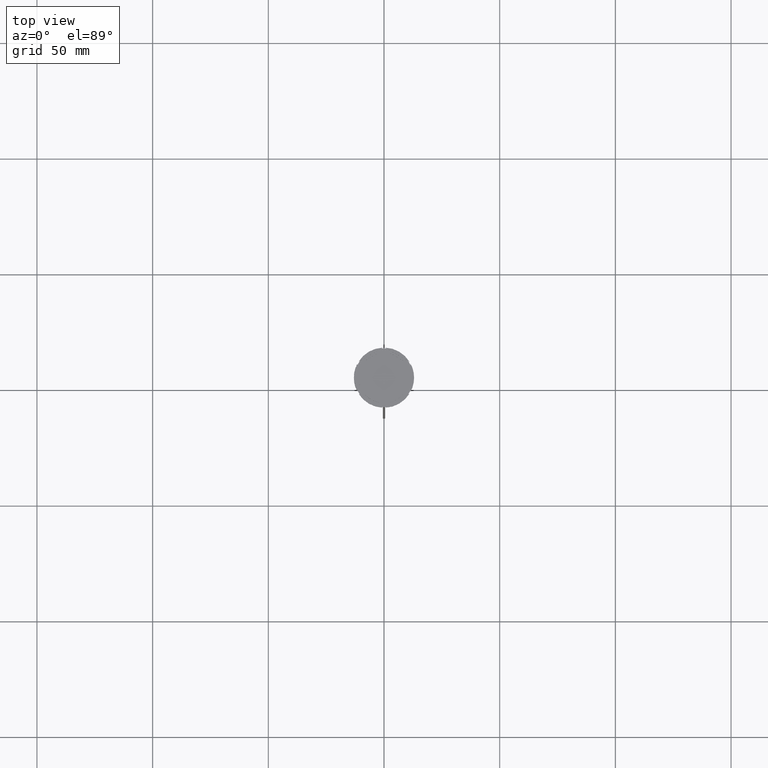
[diagram: clean part render]
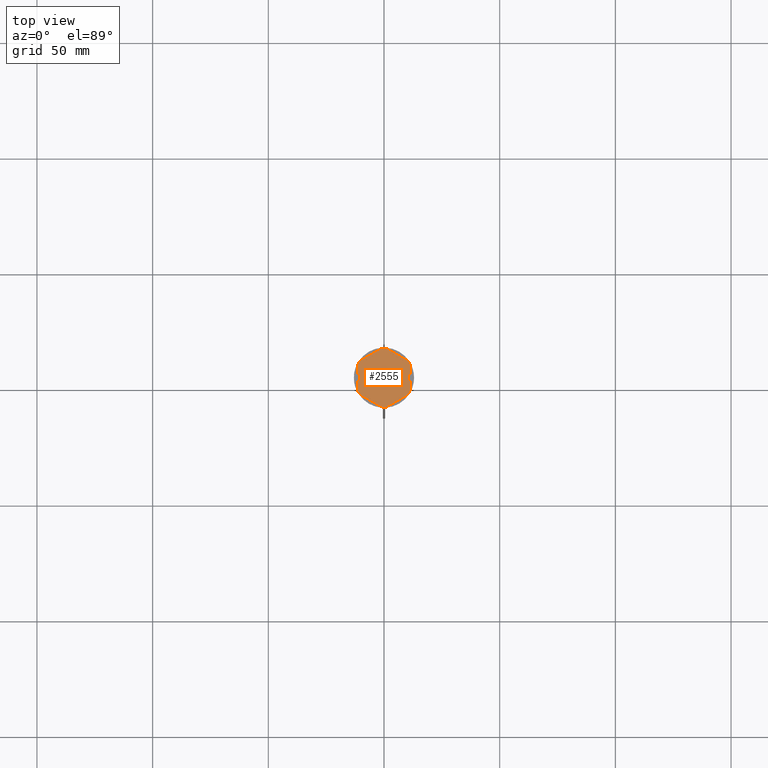
[diagram: same view with one face highlighted and labeled with its STEP entity id]
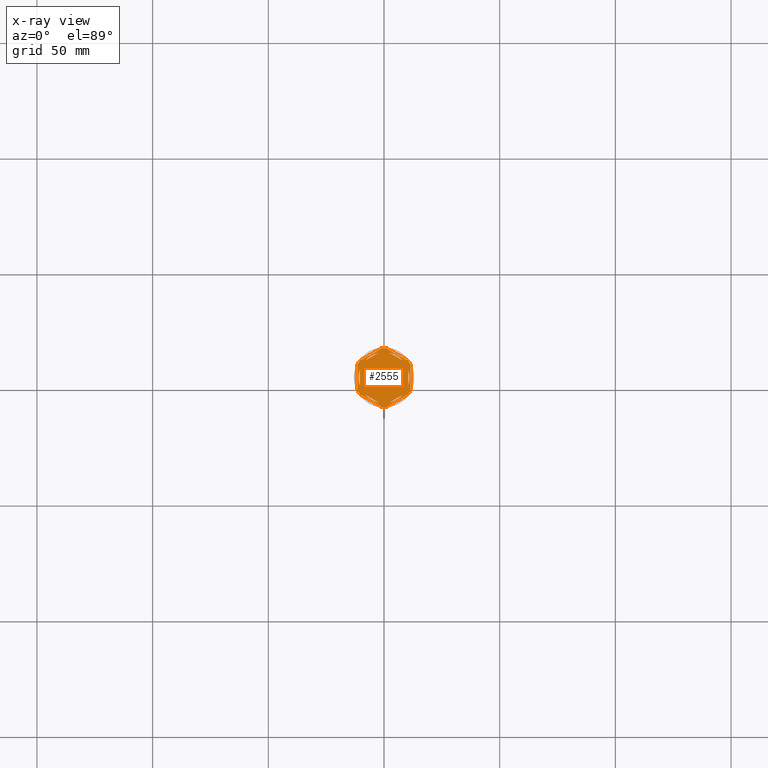
[diagram: x-ray of the same camera — body ghosted, the highlighted face saturated]
A machine part, top view. The second image highlights one B-rep face of the part: STEP entity #2555.
The next image is the same camera in x-ray: the body ghosted, the highlighted face saturated — about 0% of this face is hidden behind the body in this view.
In plain terms, the highlighted planar face has unit normal (0, 0, 1).
Its self-contained STEP definition (entity closure, byte-faithful):
#8 = DIRECTION ( 'NONE',  ( 0.000000000000000000, 0.000000000000000000, 1.000000000000000000 ) ) ;
#12 = VERTEX_POINT ( 'NONE', #1636 ) ;
#14 = VERTEX_POINT ( 'NONE', #2497 ) ;
#28 = CARTESIAN_POINT ( 'NONE',  ( 0.000000000000000000, 0.000000000000000000, -1.000000000000000000 ) ) ;
#38 = VERTEX_POINT ( 'NONE', #85 ) ;
#72 = ORIENTED_EDGE ( 'NONE', *, *, #2772, .F. ) ;
#85 = CARTESIAN_POINT ( 'NONE',  ( 10.49999999999999467, -3.278719262151014835, -1.000000000000000888 ) ) ;
#90 = FACE_OUTER_BOUND ( 'NONE', #2459, .T. ) ;
#98 = VECTOR ( 'NONE', #189, 1000.000000000000114 ) ;
#115 = CARTESIAN_POINT ( 'NONE',  ( 0.000000000000000000, 0.000000000000000000, -1.000000000000000000 ) ) ;
#153 = LINE ( 'NONE', #1864, #2081 ) ;
#158 = EDGE_CURVE ( 'NONE', #596, #478, #363, .T. ) ;
#159 = VERTEX_POINT ( 'NONE', #1044 ) ;
#168 = DIRECTION ( 'NONE',  ( 1.306360520641008153E-16, 1.000000000000000000, 0.000000000000000000 ) ) ;
#177 = EDGE_CURVE ( 'NONE', #14, #159, #1903, .T. ) ;
#180 = DIRECTION ( 'NONE',  ( 0.8660254037844385966, 0.5000000000000001110, -0.000000000000000000 ) ) ;
#189 = DIRECTION ( 'NONE',  ( -0.8660254037844385966, -0.5000000000000001110, 0.000000000000000000 ) ) ;
#199 = VECTOR ( 'NONE', #678, 1000.000000000000000 ) ;
#223 = VERTEX_POINT ( 'NONE', #931 ) ;
#226 = AXIS2_PLACEMENT_3D ( 'NONE', #1779, #1570, #717 ) ;
#249 = DIRECTION ( 'NONE',  ( -0.000000000000000000, -0.000000000000000000, -1.000000000000000000 ) ) ;
#264 = DIRECTION ( 'NONE',  ( -0.8660254037844388186, 0.4999999999999997224, 0.000000000000000000 ) ) ;
#268 = CIRCLE ( 'NONE', #226, 12.69999999999999929 ) ;
#281 = VECTOR ( 'NONE', #1062, 999.9999999999998863 ) ;
#285 = ORIENTED_EDGE ( 'NONE', *, *, #1443, .F. ) ;
#304 = DIRECTION ( 'NONE',  ( -0.000000000000000000, -0.000000000000000000, -1.000000000000000000 ) ) ;
#306 = DIRECTION ( 'NONE',  ( 1.000000000000000000, 7.105427357601001859E-15, 0.000000000000000000 ) ) ;
#314 = AXIS2_PLACEMENT_3D ( 'NONE', #519, #2223, #952 ) ;
#316 = DIRECTION ( 'NONE',  ( 1.000000000000000000, 0.000000000000000000, 0.000000000000000000 ) ) ;
#323 = CIRCLE ( 'NONE', #994, 11.00000000000000000 ) ;
#325 = AXIS2_PLACEMENT_3D ( 'NONE', #2741, #2311, #2722 ) ;
#330 = AXIS2_PLACEMENT_3D ( 'NONE', #336, #1830, #1818 ) ;
#336 = CARTESIAN_POINT ( 'NONE',  ( 0.000000000000000000, 0.000000000000000000, -1.000000000000000000 ) ) ;
#354 = ORIENTED_EDGE ( 'NONE', *, *, #177, .F. ) ;
#363 = LINE ( 'NONE', #2087, #98 ) ;
#384 = CARTESIAN_POINT ( 'NONE',  ( -8.089454172900135021, 7.453907108661106840, -1.000000000000000888 ) ) ;
#386 = LINE ( 'NONE', #2325, #1134 ) ;
#397 = ORIENTED_EDGE ( 'NONE', *, *, #1234, .F. ) ;
#407 = LINE ( 'NONE', #2530, #2703 ) ;
#411 = DIRECTION ( 'NONE',  ( 0.000000000000000000, 1.000000000000000000, 0.000000000000000000 ) ) ;
#413 = CIRCLE ( 'NONE', #778, 12.69999999999999929 ) ;
#415 = CIRCLE ( 'NONE', #325, 11.00000000000000000 ) ;
#427 = ORIENTED_EDGE ( 'NONE', *, *, #2267, .T. ) ;
#454 = ORIENTED_EDGE ( 'NONE', *, *, #2356, .T. ) ;
#469 = CARTESIAN_POINT ( 'NONE',  ( -10.49999999999999822, 3.278719262151000624, -1.000000000000000888 ) ) ;
#476 = EDGE_CURVE ( 'NONE', #1919, #38, #2119, .T. ) ;
#478 = VERTEX_POINT ( 'NONE', #1322 ) ;
#479 = DIRECTION ( 'NONE',  ( 1.000000000000000000, 1.243449787580175325E-14, 0.000000000000000000 ) ) ;
#482 = LINE ( 'NONE', #876, #1229 ) ;
#499 = AXIS2_PLACEMENT_3D ( 'NONE', #1165, #1154, #2689 ) ;
#502 = CIRCLE ( 'NONE', #1583, 11.00000000000000000 ) ;
#519 = CARTESIAN_POINT ( 'NONE',  ( 0.000000000000000000, 0.000000000000000000, -1.000000000000000000 ) ) ;
#538 = EDGE_CURVE ( 'NONE', #1065, #478, #1141, .T. ) ;
#541 = VECTOR ( 'NONE', #2717, 1000.000000000000000 ) ;
#545 = ORIENTED_EDGE ( 'NONE', *, *, #2114, .T. ) ;
#592 = VERTEX_POINT ( 'NONE', #1681 ) ;
#596 = VERTEX_POINT ( 'NONE', #1537 ) ;
#612 = VERTEX_POINT ( 'NONE', #469 ) ;
#613 = CARTESIAN_POINT ( 'NONE',  ( 10.41690475583121867, -7.264853426459537467, -1.000000000000000000 ) ) ;
#619 = EDGE_CURVE ( 'NONE', #612, #2230, #502, .T. ) ;
#637 = DIRECTION ( 'NONE',  ( 1.000000000000000000, 0.000000000000000000, 0.000000000000000000 ) ) ;
#645 = AXIS2_PLACEMENT_3D ( 'NONE', #1300, #1509, #637 ) ;
#674 = AXIS2_PLACEMENT_3D ( 'NONE', #1048, #8, #2592 ) ;
#678 = DIRECTION ( 'NONE',  ( -0.8660254037844384856, 0.5000000000000002220, 0.000000000000000000 ) ) ;
#717 = DIRECTION ( 'NONE',  ( 1.000000000000000000, -1.776356839400250465E-14, 0.000000000000000000 ) ) ;
#722 = ORIENTED_EDGE ( 'NONE', *, *, #1358, .F. ) ;
#725 = FACE_BOUND ( 'NONE', #2305, .T. ) ;
#751 = EDGE_LOOP ( 'NONE', ( #397, #1587 ) ) ;
#758 = LINE ( 'NONE', #1593, #2255 ) ;
#763 = CARTESIAN_POINT ( 'NONE',  ( 1.083095244168781557, 12.65373086058254160, -1.000000000000000000 ) ) ;
#778 = AXIS2_PLACEMENT_3D ( 'NONE', #2172, #304, #479 ) ;
#779 = EDGE_CURVE ( 'NONE', #2733, #940, #787, .T. ) ;
#787 = LINE ( 'NONE', #1827, #1453 ) ;
#858 = CARTESIAN_POINT ( 'NONE',  ( -2.410545827099867200, 10.73262637081210613, -1.000000000000000888 ) ) ;
#872 = AXIS2_PLACEMENT_3D ( 'NONE', #115, #2229, #1605 ) ;
#876 = CARTESIAN_POINT ( 'NONE',  ( 11.50000000000000000, 6.639528095680698350, -1.000000000000000000 ) ) ;
#931 = CARTESIAN_POINT ( 'NONE',  ( -1.083095244168779780, -12.65373086058253982, -1.000000000000000000 ) ) ;
#935 = VERTEX_POINT ( 'NONE', #858 ) ;
#940 = VERTEX_POINT ( 'NONE', #1721 ) ;
#952 = DIRECTION ( 'NONE',  ( 1.000000000000000000, 0.000000000000000000, -0.000000000000000000 ) ) ;
#953 = ORIENTED_EDGE ( 'NONE', *, *, #2061, .F. ) ;
#969 = EDGE_CURVE ( 'NONE', #2488, #935, #2744, .T. ) ;
#982 = EDGE_CURVE ( 'NONE', #1043, #612, #386, .T. ) ;
#985 = ORIENTED_EDGE ( 'NONE', *, *, #779, .F. ) ;
#994 = AXIS2_PLACEMENT_3D ( 'NONE', #2234, #1020, #316 ) ;
#1020 = DIRECTION ( 'NONE',  ( 0.000000000000000000, 0.000000000000000000, 1.000000000000000000 ) ) ;
#1043 = VERTEX_POINT ( 'NONE', #2792 ) ;
#1044 = CARTESIAN_POINT ( 'NONE',  ( 2.410545827099865868, -10.73262637081210791, -1.000000000000000888 ) ) ;
#1048 = CARTESIAN_POINT ( 'NONE',  ( 0.000000000000000000, 0.000000000000000000, -1.000000000000000000 ) ) ;
#1062 = DIRECTION ( 'NONE',  ( -0.8660254037844387076, -0.4999999999999999445, 0.000000000000000000 ) ) ;
#1065 = VERTEX_POINT ( 'NONE', #2182 ) ;
#1086 = CARTESIAN_POINT ( 'NONE',  ( 10.49999999999999467, 3.278719262151012170, -1.000000000000000888 ) ) ;
#1118 = EDGE_LOOP ( 'NONE', ( #285, #985 ) ) ;
#1134 = VECTOR ( 'NONE', #411, 1000.000000000000000 ) ;
#1141 = CIRCLE ( 'NONE', #1801, 12.69999999999999929 ) ;
#1148 = CARTESIAN_POINT ( 'NONE',  ( 11.49999999999999822, 5.388877434122992582, -1.000000000000000000 ) ) ;
#1154 = DIRECTION ( 'NONE',  ( 0.000000000000000000, 0.000000000000000000, 1.000000000000000000 ) ) ;
#1165 = CARTESIAN_POINT ( 'NONE',  ( 0.000000000000000000, 0.000000000000000000, -1.000000000000000000 ) ) ;
#1178 = FACE_BOUND ( 'NONE', #2407, .T. ) ;
#1191 = EDGE_CURVE ( 'NONE', #596, #1772, #413, .T. ) ;
#1196 = FACE_BOUND ( 'NONE', #751, .T. ) ;
#1207 = EDGE_CURVE ( 'NONE', #2763, #223, #2516, .T. ) ;
#1229 = VECTOR ( 'NONE', #264, 1000.000000000000000 ) ;
#1234 = EDGE_CURVE ( 'NONE', #1267, #592, #323, .T. ) ;
#1267 = VERTEX_POINT ( 'NONE', #1415 ) ;
#1300 = CARTESIAN_POINT ( 'NONE',  ( 0.000000000000000000, 0.000000000000000000, -1.000000000000000000 ) ) ;
#1322 = CARTESIAN_POINT ( 'NONE',  ( -10.41690475583121689, 7.264853426459546348, -1.000000000000000000 ) ) ;
#1358 = EDGE_CURVE ( 'NONE', #935, #2488, #2519, .T. ) ;
#1376 = PLANE ( 'NONE',  #314 ) ;
#1381 = ORIENTED_EDGE ( 'NONE', *, *, #2080, .F. ) ;
#1395 = ORIENTED_EDGE ( 'NONE', *, *, #1416, .T. ) ;
#1399 = DIRECTION ( 'NONE',  ( 1.000000000000000000, 0.000000000000000000, 0.000000000000000000 ) ) ;
#1415 = CARTESIAN_POINT ( 'NONE',  ( -8.089454172900133244, -7.453907108661111280, -1.000000000000000888 ) ) ;
#1416 = EDGE_CURVE ( 'NONE', #1065, #1860, #407, .T. ) ;
#1443 = EDGE_CURVE ( 'NONE', #940, #2733, #415, .T. ) ;
#1445 = LINE ( 'NONE', #2750, #2577 ) ;
#1453 = VECTOR ( 'NONE', #2687, 999.9999999999998863 ) ;
#1456 = DIRECTION ( 'NONE',  ( 0.000000000000000000, -1.000000000000000000, 0.000000000000000000 ) ) ;
#1464 = DIRECTION ( 'NONE',  ( 1.000000000000000000, 0.000000000000000000, 0.000000000000000000 ) ) ;
#1500 = EDGE_LOOP ( 'NONE', ( #2774, #1882, #2539 ) ) ;
#1509 = DIRECTION ( 'NONE',  ( 0.000000000000000000, 0.000000000000000000, 1.000000000000000000 ) ) ;
#1524 = AXIS2_PLACEMENT_3D ( 'NONE', #1816, #1590, #306 ) ;
#1536 = CIRCLE ( 'NONE', #499, 11.00000000000000000 ) ;
#1537 = CARTESIAN_POINT ( 'NONE',  ( -1.083095244168783333, 12.65373086058254160, -1.000000000000000000 ) ) ;
#1562 = EDGE_CURVE ( 'NONE', #592, #1267, #2601, .T. ) ;
#1570 = DIRECTION ( 'NONE',  ( -0.000000000000000000, -0.000000000000000000, -1.000000000000000000 ) ) ;
#1578 = FACE_BOUND ( 'NONE', #1645, .T. ) ;
#1583 = AXIS2_PLACEMENT_3D ( 'NONE', #28, #2222, #1760 ) ;
#1587 = ORIENTED_EDGE ( 'NONE', *, *, #1562, .F. ) ;
#1590 = DIRECTION ( 'NONE',  ( -0.000000000000000000, -0.000000000000000000, -1.000000000000000000 ) ) ;
#1593 = CARTESIAN_POINT ( 'NONE',  ( 5.612359739892467248E-18, -13.27905619136138959, -1.000000000000000000 ) ) ;
#1605 = DIRECTION ( 'NONE',  ( 1.000000000000000000, 0.000000000000000000, 0.000000000000000000 ) ) ;
#1636 = CARTESIAN_POINT ( 'NONE',  ( -10.41690475583121334, -7.264853426459548125, -1.000000000000000000 ) ) ;
#1645 = EDGE_LOOP ( 'NONE', ( #722, #2754 ) ) ;
#1649 = CARTESIAN_POINT ( 'NONE',  ( -2.602085213965210642E-15, -12.12435565298214080, -1.000000000000000888 ) ) ;
#1679 = ORIENTED_EDGE ( 'NONE', *, *, #1207, .F. ) ;
#1681 = CARTESIAN_POINT ( 'NONE',  ( -2.410545827099876082, -10.73262637081210435, -1.000000000000000888 ) ) ;
#1697 = EDGE_CURVE ( 'NONE', #2498, #2291, #1712, .T. ) ;
#1701 = ORIENTED_EDGE ( 'NONE', *, *, #476, .F. ) ;
#1703 = CIRCLE ( 'NONE', #674, 11.00000000000000000 ) ;
#1712 = CIRCLE ( 'NONE', #872, 12.69999999999999929 ) ;
#1721 = CARTESIAN_POINT ( 'NONE',  ( 8.089454172900138573, 7.453907108661105063, -1.000000000000000888 ) ) ;
#1750 = ORIENTED_EDGE ( 'NONE', *, *, #158, .T. ) ;
#1760 = DIRECTION ( 'NONE',  ( 1.000000000000000000, 0.000000000000000000, 0.000000000000000000 ) ) ;
#1772 = VERTEX_POINT ( 'NONE', #763 ) ;
#1779 = CARTESIAN_POINT ( 'NONE',  ( 0.000000000000000000, 0.000000000000000000, -1.000000000000000000 ) ) ;
#1801 = AXIS2_PLACEMENT_3D ( 'NONE', #2093, #249, #1464 ) ;
#1816 = CARTESIAN_POINT ( 'NONE',  ( 0.000000000000000000, 0.000000000000000000, -1.000000000000000000 ) ) ;
#1818 = DIRECTION ( 'NONE',  ( 1.000000000000000000, 0.000000000000000000, 0.000000000000000000 ) ) ;
#1827 = CARTESIAN_POINT ( 'NONE',  ( 10.49999999999999467, 6.062177826491072175, -1.000000000000000888 ) ) ;
#1830 = DIRECTION ( 'NONE',  ( 0.000000000000000000, 0.000000000000000000, 1.000000000000000000 ) ) ;
#1859 = DIRECTION ( 'NONE',  ( -0.000000000000000000, -0.000000000000000000, -1.000000000000000000 ) ) ;
#1860 = VERTEX_POINT ( 'NONE', #2318 ) ;
#1864 = CARTESIAN_POINT ( 'NONE',  ( 11.49999999999999822, -6.639528095680694797, -1.000000000000000000 ) ) ;
#1871 = FACE_BOUND ( 'NONE', #1500, .T. ) ;
#1882 = ORIENTED_EDGE ( 'NONE', *, *, #982, .F. ) ;
#1903 = LINE ( 'NONE', #1649, #281 ) ;
#1909 = CARTESIAN_POINT ( 'NONE',  ( -1.734723475976807094E-15, 12.12435565298214080, -1.000000000000000888 ) ) ;
#1919 = VERTEX_POINT ( 'NONE', #1086 ) ;
#1971 = CARTESIAN_POINT ( 'NONE',  ( 2.410545827099861871, 10.73262637081210791, -1.000000000000000888 ) ) ;
#1974 = ORIENTED_EDGE ( 'NONE', *, *, #1191, .F. ) ;
#2054 = CARTESIAN_POINT ( 'NONE',  ( 0.000000000000000000, 0.000000000000000000, -1.000000000000000000 ) ) ;
#2061 = EDGE_CURVE ( 'NONE', #38, #1919, #1536, .T. ) ;
#2080 = EDGE_CURVE ( 'NONE', #159, #14, #2434, .T. ) ;
#2081 = VECTOR ( 'NONE', #168, 1000.000000000000000 ) ;
#2087 = CARTESIAN_POINT ( 'NONE',  ( 0.000000000000000000, 13.27905619136138959, -1.000000000000000000 ) ) ;
#2093 = CARTESIAN_POINT ( 'NONE',  ( 0.000000000000000000, 0.000000000000000000, -1.000000000000000000 ) ) ;
#2103 = CARTESIAN_POINT ( 'NONE',  ( 10.41690475583121156, 7.264853426459550789, -1.000000000000000000 ) ) ;
#2114 = EDGE_CURVE ( 'NONE', #2763, #2291, #758, .T. ) ;
#2119 = LINE ( 'NONE', #2769, #541 ) ;
#2122 = ORIENTED_EDGE ( 'NONE', *, *, #2501, .F. ) ;
#2132 = ORIENTED_EDGE ( 'NONE', *, *, #538, .F. ) ;
#2152 = CIRCLE ( 'NONE', #1524, 12.69999999999999929 ) ;
#2172 = CARTESIAN_POINT ( 'NONE',  ( 0.000000000000000000, 0.000000000000000000, -1.000000000000000000 ) ) ;
#2181 = VERTEX_POINT ( 'NONE', #2103 ) ;
#2182 = CARTESIAN_POINT ( 'NONE',  ( -11.50000000000000000, 5.388877434122992582, -1.000000000000000000 ) ) ;
#2217 = CARTESIAN_POINT ( 'NONE',  ( -10.49999999999999822, -6.062177826491068622, -1.000000000000000888 ) ) ;
#2222 = DIRECTION ( 'NONE',  ( 0.000000000000000000, 0.000000000000000000, 1.000000000000000000 ) ) ;
#2223 = DIRECTION ( 'NONE',  ( 0.000000000000000000, 0.000000000000000000, 1.000000000000000000 ) ) ;
#2224 = ORIENTED_EDGE ( 'NONE', *, *, #1697, .F. ) ;
#2229 = DIRECTION ( 'NONE',  ( -0.000000000000000000, -0.000000000000000000, -1.000000000000000000 ) ) ;
#2230 = VERTEX_POINT ( 'NONE', #2283 ) ;
#2234 = CARTESIAN_POINT ( 'NONE',  ( 0.000000000000000000, 0.000000000000000000, -1.000000000000000000 ) ) ;
#2255 = VECTOR ( 'NONE', #2666, 1000.000000000000114 ) ;
#2267 = EDGE_CURVE ( 'NONE', #12, #223, #1445, .T. ) ;
#2283 = CARTESIAN_POINT ( 'NONE',  ( -11.00000000000000000, 0.000000000000000000, -1.000000000000000000 ) ) ;
#2291 = VERTEX_POINT ( 'NONE', #613 ) ;
#2299 = DIRECTION ( 'NONE',  ( 0.8660254037844387076, -0.4999999999999997780, 0.000000000000000000 ) ) ;
#2305 = EDGE_LOOP ( 'NONE', ( #953, #1701 ) ) ;
#2311 = DIRECTION ( 'NONE',  ( 0.000000000000000000, 0.000000000000000000, 1.000000000000000000 ) ) ;
#2318 = CARTESIAN_POINT ( 'NONE',  ( -11.50000000000000000, -5.388877434122992582, -1.000000000000000000 ) ) ;
#2319 = EDGE_CURVE ( 'NONE', #2498, #2738, #153, .T. ) ;
#2325 = CARTESIAN_POINT ( 'NONE',  ( -10.49999999999999822, 6.062177826491068622, -1.000000000000000888 ) ) ;
#2356 = EDGE_CURVE ( 'NONE', #2181, #1772, #482, .T. ) ;
#2407 = EDGE_LOOP ( 'NONE', ( #1381, #354 ) ) ;
#2434 = CIRCLE ( 'NONE', #330, 11.00000000000000000 ) ;
#2459 = EDGE_LOOP ( 'NONE', ( #2518, #72, #454, #1974, #1750, #2132, #1395, #2122, #427, #1679, #545, #2224 ) ) ;
#2488 = VERTEX_POINT ( 'NONE', #384 ) ;
#2497 = CARTESIAN_POINT ( 'NONE',  ( 8.089454172900135021, -7.453907108661109504, -1.000000000000000888 ) ) ;
#2498 = VERTEX_POINT ( 'NONE', #2664 ) ;
#2501 = EDGE_CURVE ( 'NONE', #12, #1860, #2152, .T. ) ;
#2516 = CIRCLE ( 'NONE', #2653, 12.69999999999999929 ) ;
#2518 = ORIENTED_EDGE ( 'NONE', *, *, #2319, .T. ) ;
#2519 = CIRCLE ( 'NONE', #645, 11.00000000000000000 ) ;
#2530 = CARTESIAN_POINT ( 'NONE',  ( -11.50000000000000000, 6.639528095680691244, -1.000000000000000000 ) ) ;
#2539 = ORIENTED_EDGE ( 'NONE', *, *, #2587, .F. ) ;
#2555 = ADVANCED_FACE ( 'NONE', ( #2676, #725, #1178, #1196, #1871, #1578, #90 ), #1376, .T. ) ;
#2577 = VECTOR ( 'NONE', #2299, 1000.000000000000227 ) ;
#2578 = VECTOR ( 'NONE', #180, 1000.000000000000000 ) ;
#2587 = EDGE_CURVE ( 'NONE', #2230, #1043, #1703, .T. ) ;
#2592 = DIRECTION ( 'NONE',  ( 1.000000000000000000, 0.000000000000000000, 0.000000000000000000 ) ) ;
#2601 = LINE ( 'NONE', #2217, #199 ) ;
#2637 = CARTESIAN_POINT ( 'NONE',  ( 1.083095244168774673, -12.65373086058253982, -1.000000000000000000 ) ) ;
#2653 = AXIS2_PLACEMENT_3D ( 'NONE', #2054, #1859, #1399 ) ;
#2664 = CARTESIAN_POINT ( 'NONE',  ( 11.49999999999999822, -5.388877434122996135, -1.000000000000000000 ) ) ;
#2666 = DIRECTION ( 'NONE',  ( 0.8660254037844385966, 0.4999999999999999445, 0.000000000000000000 ) ) ;
#2676 = FACE_BOUND ( 'NONE', #1118, .T. ) ;
#2687 = DIRECTION ( 'NONE',  ( 0.8660254037844387076, -0.4999999999999999445, 0.000000000000000000 ) ) ;
#2689 = DIRECTION ( 'NONE',  ( 1.000000000000000000, 0.000000000000000000, 0.000000000000000000 ) ) ;
#2703 = VECTOR ( 'NONE', #1456, 1000.000000000000000 ) ;
#2717 = DIRECTION ( 'NONE',  ( -1.430775808321104180E-16, -1.000000000000000000, 0.000000000000000000 ) ) ;
#2722 = DIRECTION ( 'NONE',  ( 1.000000000000000000, 0.000000000000000000, 0.000000000000000000 ) ) ;
#2733 = VERTEX_POINT ( 'NONE', #1971 ) ;
#2738 = VERTEX_POINT ( 'NONE', #1148 ) ;
#2741 = CARTESIAN_POINT ( 'NONE',  ( 0.000000000000000000, 0.000000000000000000, -1.000000000000000000 ) ) ;
#2744 = LINE ( 'NONE', #1909, #2578 ) ;
#2750 = CARTESIAN_POINT ( 'NONE',  ( -11.50000000000000000, -6.639528095680696573, -1.000000000000000000 ) ) ;
#2754 = ORIENTED_EDGE ( 'NONE', *, *, #969, .F. ) ;
#2763 = VERTEX_POINT ( 'NONE', #2637 ) ;
#2769 = CARTESIAN_POINT ( 'NONE',  ( 10.49999999999999289, -6.062177826491073063, -1.000000000000000888 ) ) ;
#2772 = EDGE_CURVE ( 'NONE', #2181, #2738, #268, .T. ) ;
#2774 = ORIENTED_EDGE ( 'NONE', *, *, #619, .F. ) ;
#2792 = CARTESIAN_POINT ( 'NONE',  ( -10.49999999999999822, -3.278719262151000624, -1.000000000000000888 ) ) ;